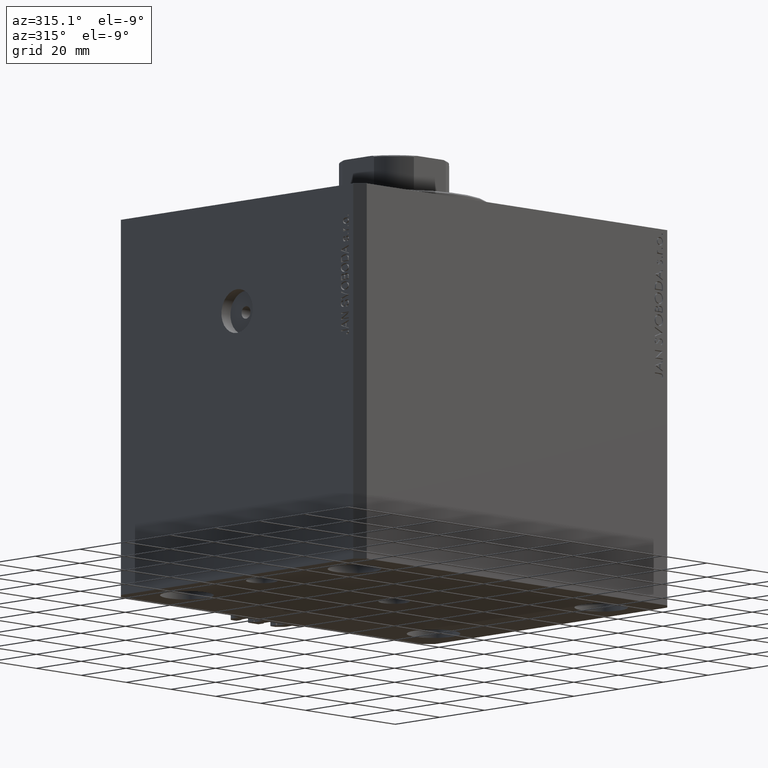
[diagram: clean part render]
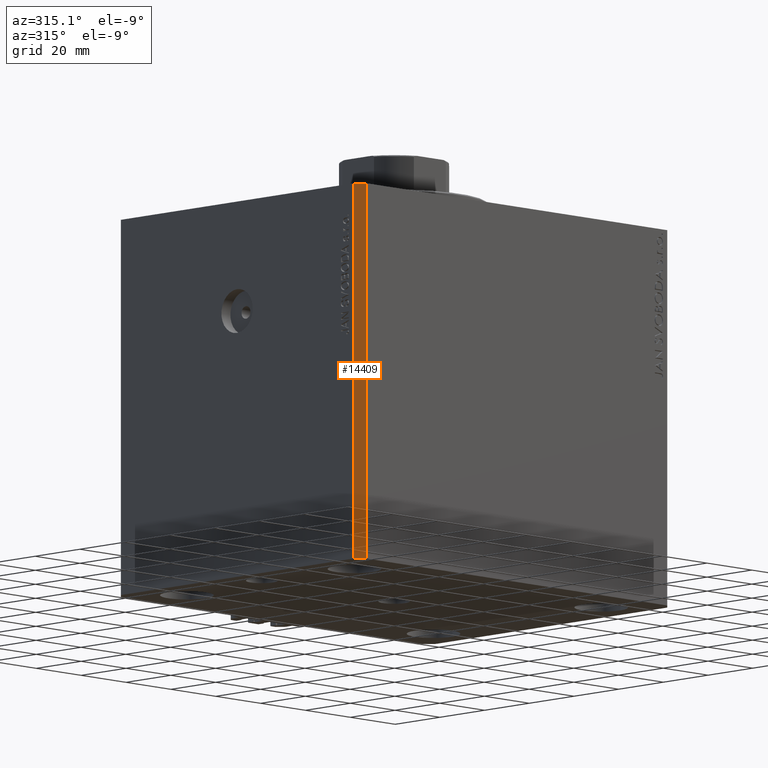
[diagram: same view with one face highlighted and labeled with its STEP entity id]
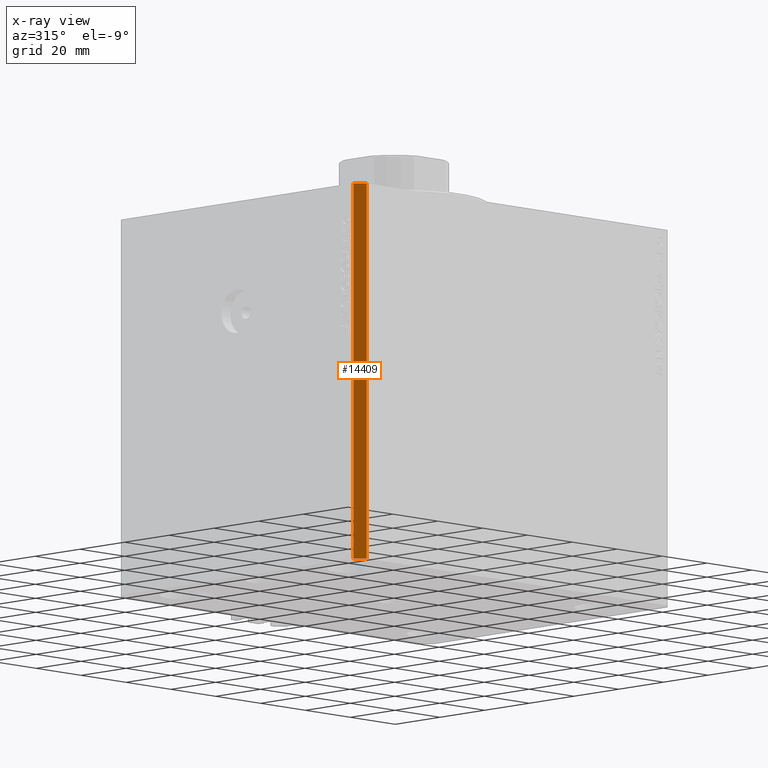
[diagram: x-ray of the same camera — body ghosted, the highlighted face saturated]
A machine part, auxiliary view. The second image highlights one B-rep face of the part: STEP entity #14409.
The next image is the same camera in x-ray: the body ghosted, the highlighted face saturated — about 0% of this face is hidden behind the body in this view.
In plain terms, the highlighted planar face has unit normal (-0.7071, -0.7071, 0).
Its self-contained STEP definition (entity closure, byte-faithful):
#629 = DIRECTION ( 'NONE',  ( 0.000000000000000000, 0.000000000000000000, 1.000000000000000000 ) ) ;
#2191 = DIRECTION ( 'NONE',  ( 0.7071067811865483499, -0.7071067811865466846, 0.000000000000000000 ) ) ;
#4218 = CARTESIAN_POINT ( 'NONE',  ( -70.00000000000000000, -52.00000000000000711, -120.0000000000000000 ) ) ;
#4351 = CARTESIAN_POINT ( 'NONE',  ( -67.00000000000000000, -55.00000000000000000, -120.0000000000000000 ) ) ;
#4395 = EDGE_CURVE ( 'NONE', #46598, #11185, #45489, .T. ) ;
#8852 = ORIENTED_EDGE ( 'NONE', *, *, #4395, .T. ) ;
#9155 = PLANE ( 'NONE',  #33755 ) ;
#11185 = VERTEX_POINT ( 'NONE', #16601 ) ;
#11423 = ORIENTED_EDGE ( 'NONE', *, *, #20970, .T. ) ;
#12963 = CARTESIAN_POINT ( 'NONE',  ( -70.00000000000000000, -52.00000000000000711, -120.0000000000000000 ) ) ;
#14409 = ADVANCED_FACE ( 'NONE', ( #34774 ), #9155, .T. ) ;
#16507 = CARTESIAN_POINT ( 'NONE',  ( -70.00000000000000000, -52.00000000000000711, -120.0000000000000000 ) ) ;
#16601 = CARTESIAN_POINT ( 'NONE',  ( -67.00000000000000000, -55.00000000000000000, -120.0000000000000000 ) ) ;
#16824 = VERTEX_POINT ( 'NONE', #35105 ) ;
#20515 = VECTOR ( 'NONE', #629, 1000.000000000000000 ) ;
#20970 = EDGE_CURVE ( 'NONE', #11185, #16824, #36909, .T. ) ;
#21307 = CARTESIAN_POINT ( 'NONE',  ( -70.00000000000000000, -52.00000000000000711, 0.000000000000000000 ) ) ;
#24215 = DIRECTION ( 'NONE',  ( -0.7071067811865466846, -0.7071067811865484609, 0.000000000000000000 ) ) ;
#25184 = DIRECTION ( 'NONE',  ( 0.000000000000000000, 0.000000000000000000, 1.000000000000000000 ) ) ;
#27488 = CARTESIAN_POINT ( 'NONE',  ( -70.00000000000000000, -52.00000000000000711, -120.0000000000000000 ) ) ;
#29315 = ORIENTED_EDGE ( 'NONE', *, *, #31944, .F. ) ;
#30405 = VERTEX_POINT ( 'NONE', #33214 ) ;
#31369 = DIRECTION ( 'NONE',  ( 0.7071067811865483499, -0.7071067811865466846, 0.000000000000000000 ) ) ;
#31385 = LINE ( 'NONE', #21307, #38757 ) ;
#31944 = EDGE_CURVE ( 'NONE', #30405, #16824, #31385, .T. ) ;
#33214 = CARTESIAN_POINT ( 'NONE',  ( -70.00000000000000000, -52.00000000000000711, 0.000000000000000000 ) ) ;
#33755 = AXIS2_PLACEMENT_3D ( 'NONE', #12963, #24215, #42414 ) ;
#34774 = FACE_OUTER_BOUND ( 'NONE', #47224, .T. ) ;
#35105 = CARTESIAN_POINT ( 'NONE',  ( -67.00000000000000000, -55.00000000000000000, 0.000000000000000000 ) ) ;
#36490 = VECTOR ( 'NONE', #31369, 1000.000000000000000 ) ;
#36559 = LINE ( 'NONE', #4218, #20515 ) ;
#36909 = LINE ( 'NONE', #4351, #36930 ) ;
#36930 = VECTOR ( 'NONE', #25184, 1000.000000000000000 ) ;
#38757 = VECTOR ( 'NONE', #2191, 1000.000000000000000 ) ;
#39604 = EDGE_CURVE ( 'NONE', #46598, #30405, #36559, .T. ) ;
#42414 = DIRECTION ( 'NONE',  ( 0.7071067811865483499, -0.7071067811865465735, 0.000000000000000000 ) ) ;
#43610 = ORIENTED_EDGE ( 'NONE', *, *, #39604, .F. ) ;
#45489 = LINE ( 'NONE', #16507, #36490 ) ;
#46598 = VERTEX_POINT ( 'NONE', #27488 ) ;
#47224 = EDGE_LOOP ( 'NONE', ( #29315, #43610, #8852, #11423 ) ) ;